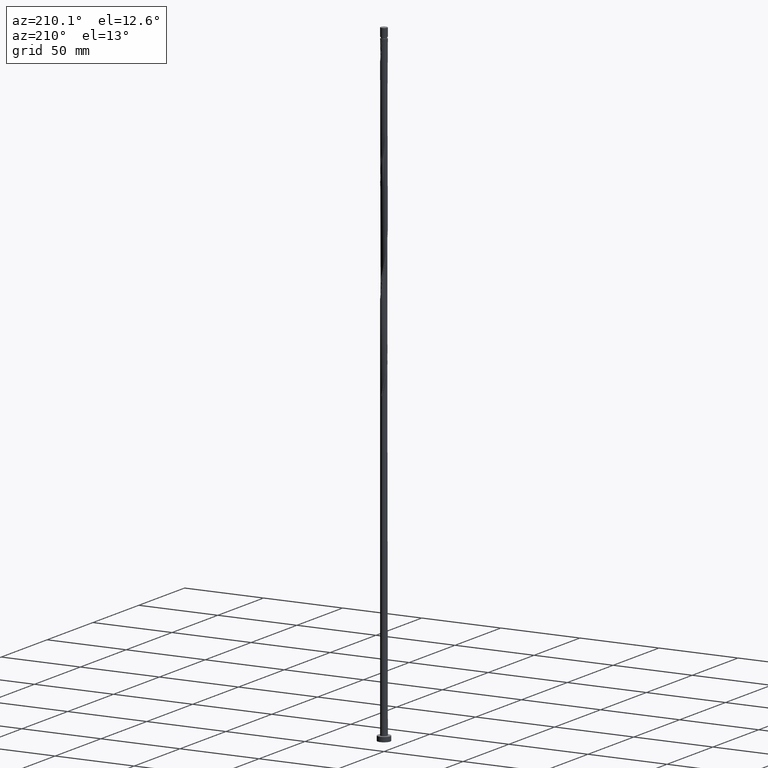
[diagram: clean part render]
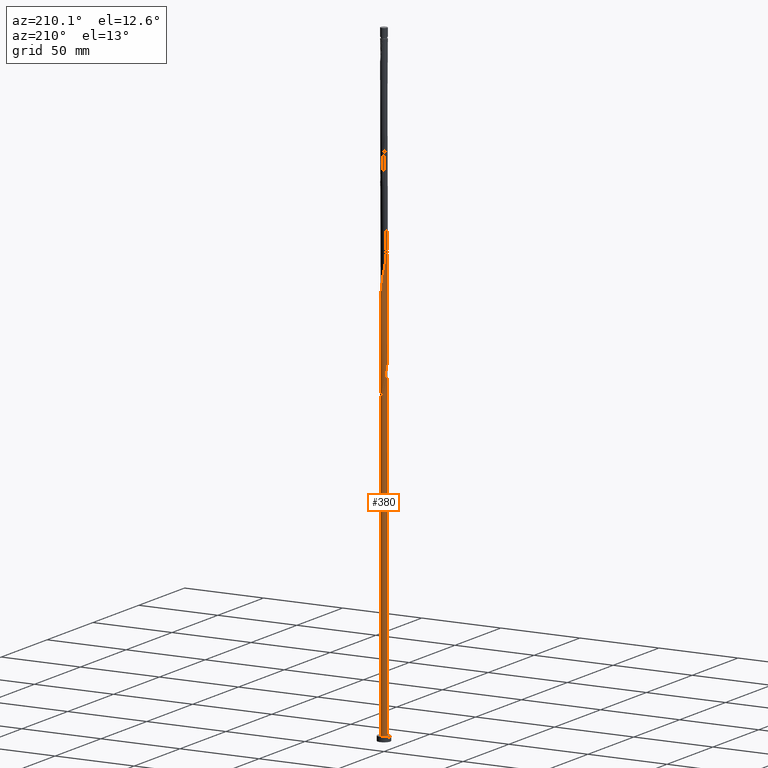
[diagram: same view with one face highlighted and labeled with its STEP entity id]
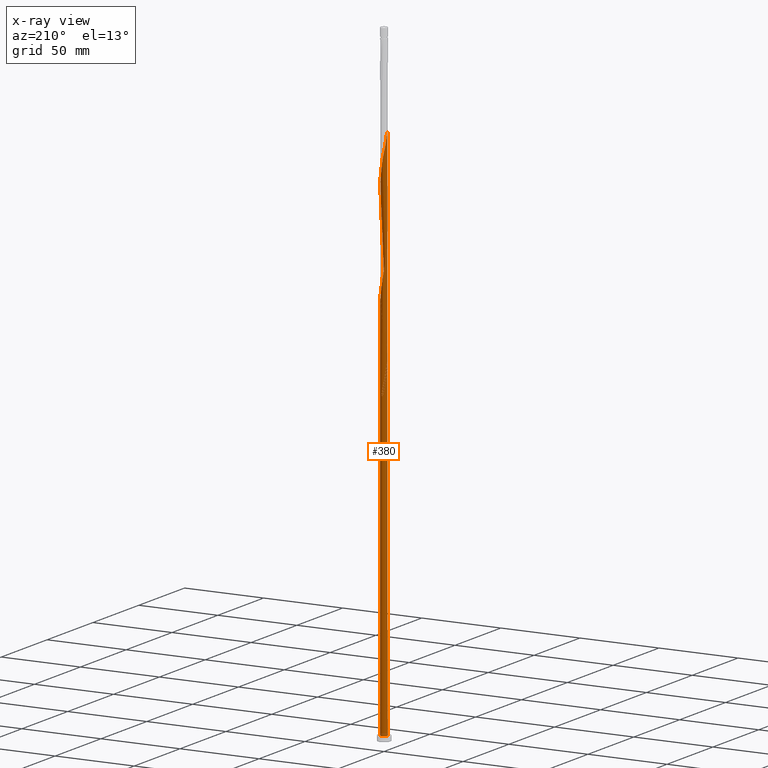
[diagram: x-ray of the same camera — body ghosted, the highlighted face saturated]
A machine part, auxiliary view. The second image highlights one B-rep face of the part: STEP entity #380.
The next image is the same camera in x-ray: the body ghosted, the highlighted face saturated — about 0% of this face is hidden behind the body in this view.
In plain terms, the highlighted cylindrical surface (bore or boss wall) has radius 2.1 mm, axis along (-0, -0, -1).
Its self-contained STEP definition (entity closure, byte-faithful):
#2 = ORIENTED_EDGE ( 'NONE', *, *, #1430, .T. ) ;
#6 = CARTESIAN_POINT ( 'NONE',  ( 1.427142655681894468, 1.556271400022309015, 317.2296152632139865 ) ) ;
#9 = ORIENTED_EDGE ( 'NONE', *, *, #1568, .T. ) ;
#16 = CARTESIAN_POINT ( 'NONE',  ( -1.427142655681894468, -1.556271400022309681, 217.2296152632138728 ) ) ;
#27 = CARTESIAN_POINT ( 'NONE',  ( -1.828137739088110170, -1.033398474414314316, 213.8962819298806721 ) ) ;
#28 = CARTESIAN_POINT ( 'NONE',  ( -2.100000000000003642, 1.121131156549833384E-16, 341.7708386863591841 ) ) ;
#32 = EDGE_LOOP ( 'NONE', ( #684, #577, #1633, #2, #222, #557, #310, #9, #1289 ) ) ;
#39 = EDGE_CURVE ( 'NONE', #453, #573, #1280, .T. ) ;
#87 = CARTESIAN_POINT ( 'NONE',  ( -0.2398292843463731006, -2.097903416405072274, 223.8962819298805584 ) ) ;
#88 = CARTESIAN_POINT ( 'NONE',  ( 0.2398292843463734059, 2.097903416405072274, 257.2296152632139865 ) ) ;
#96 = CARTESIAN_POINT ( 'NONE',  ( 1.921113390118098563, -0.8763790119024508218, 303.8962819298806153 ) ) ;
#105 = CARTESIAN_POINT ( 'NONE',  ( -0.4178947235847844111, 2.058000000000003382, 260.5629485965472441 ) ) ;
#115 = CARTESIAN_POINT ( 'NONE',  ( -2.086410881982748489, 0.2385154744329714138, 273.8962819298806153 ) ) ;
#123 = CARTESIAN_POINT ( 'NONE',  ( 1.398568953795477077, -1.581999276761400175, 299.4518374854361582 ) ) ;
#129 = CARTESIAN_POINT ( 'NONE',  ( 0.4178947235847845776, -2.058000000000003382, 227.2296152632139581 ) ) ;
#133 = CARTESIAN_POINT ( 'NONE',  ( 2.111479868522056158, -0.01922485423218994044, 308.3407263743250724 ) ) ;
#142 = CARTESIAN_POINT ( 'NONE',  ( -0.4178947235847844111, 2.058000000000003382, 327.2296152632140434 ) ) ;
#155 = EDGE_CURVE ( 'NONE', #1770, #817, #1543, .T. ) ;
#161 = CARTESIAN_POINT ( 'NONE',  ( -1.218829837953688378, 1.710103454798511002, 331.6740597076584436 ) ) ;
#174 = CYLINDRICAL_SURFACE ( 'NONE', #1793, 2.100000000000000089 ) ;
#181 = CARTESIAN_POINT ( 'NONE',  ( 1.547745982457623626, -1.419324618889668876, 233.8962819298805869 ) ) ;
#183 = CARTESIAN_POINT ( 'NONE',  ( -2.061341895443441707, 0.4578060946337541015, 206.1185041521028154 ) ) ;
#186 = CARTESIAN_POINT ( 'NONE',  ( -1.072389146410156924, -1.818982778603432937, 219.4518374854360729 ) ) ;
#190 = CARTESIAN_POINT ( 'NONE',  ( -0.01911953846917616856, -2.099912960874507739, 225.0073930409917011 ) ) ;
#196 = CARTESIAN_POINT ( 'NONE',  ( -1.218829837953688378, 1.710103454798511002, 198.3407263743250439 ) ) ;
#205 = CARTESIAN_POINT ( 'NONE',  ( -0.6341992397615473509, 2.014077494656063561, 195.0073930409916443 ) ) ;
#207 = LINE ( 'NONE', #1370, #1023 ) ;
#222 = ORIENTED_EDGE ( 'NONE', *, *, #848, .T. ) ;
#223 = CARTESIAN_POINT ( 'NONE',  ( -2.100000000000000089, 0.000000000000000000, 400.0000000000000000 ) ) ;
#235 = CARTESIAN_POINT ( 'NONE',  ( -0.4552981849463083597, -2.050049648858440321, 222.7851708187695294 ) ) ;
#236 = CARTESIAN_POINT ( 'NONE',  ( 2.061341895443441263, -0.4578060946337553783, 239.4518374854361298 ) ) ;
#245 = CARTESIAN_POINT ( 'NONE',  ( 0.2015902074080216100, -2.101922505343943204, 292.7851708187694726 ) ) ;
#253 = CARTESIAN_POINT ( 'NONE',  ( 1.249765901046026251, 1.687627089312870865, 251.6740597076583299 ) ) ;
#262 = CARTESIAN_POINT ( 'NONE',  ( 1.072389146410158034, 1.818982778603432271, 252.7851708187695010 ) ) ;
#272 = CARTESIAN_POINT ( 'NONE',  ( 0.4178947235847845776, -2.058000000000003382, 293.8962819298807290 ) ) ;
#276 = CARTESIAN_POINT ( 'NONE',  ( -2.069336039341719946, -0.4201966045504080260, 210.5629485965472725 ) ) ;
#281 = CARTESIAN_POINT ( 'NONE',  ( -2.100000000000003197, 0.1196448486375082665, 341.1652473769744347 ) ) ;
#290 = CARTESIAN_POINT ( 'NONE',  ( 2.086410881982748489, -0.2385154744329716359, 307.2296152632139865 ) ) ;
#298 = CARTESIAN_POINT ( 'NONE',  ( 2.069336039341719946, 0.4201966045504078595, 310.5629485965473009 ) ) ;
#310 = ORIENTED_EDGE ( 'NONE', *, *, #1308, .F. ) ;
#332 = VERTEX_POINT ( 'NONE', #1618 ) ;
#355 = AXIS2_PLACEMENT_3D ( 'NONE', #529, #551, #410 ) ;
#373 = LINE ( 'NONE', #223, #572 ) ;
#380 = ADVANCED_FACE ( 'NONE', ( #1338 ), #174, .T. ) ;
#385 = CARTESIAN_POINT ( 'NONE',  ( -0.01911953846917616856, -2.099912960874507739, 291.6740597076583867 ) ) ;
#395 = CARTESIAN_POINT ( 'NONE',  ( -0.8366449809367235702, 1.926142563745842695, 262.7851708187694726 ) ) ;
#399 = CARTESIAN_POINT ( 'NONE',  ( 0.000000000000000000, 0.000000000000000000, 193.8962819298805869 ) ) ;
#404 = CARTESIAN_POINT ( 'NONE',  ( 0.6707670855462437576, 2.002195881311807923, 255.0073930409916727 ) ) ;
#410 = DIRECTION ( 'NONE',  ( 1.000000000000000000, 0.000000000000000000, 0.000000000000000000 ) ) ;
#412 = CARTESIAN_POINT ( 'NONE',  ( -1.719523182710076314, -1.225543493441492604, 281.6740597076584436 ) ) ;
#422 = CARTESIAN_POINT ( 'NONE',  ( 0.01911953846917643224, 2.099912960874507739, 258.3407263743250724 ) ) ;
#434 = CARTESIAN_POINT ( 'NONE',  ( -2.003044167403932097, -0.6307250299687718886, 211.6740597076584152 ) ) ;
#439 = CARTESIAN_POINT ( 'NONE',  ( 1.573332919195986168, 1.390907446731900032, 316.1185041521027870 ) ) ;
#451 = CARTESIAN_POINT ( 'NONE',  ( 0.2015902074080222206, 2.101922505343939207, 195.0073930409915874 ) ) ;
#453 = VERTEX_POINT ( 'NONE', #1068 ) ;
#487 = CARTESIAN_POINT ( 'NONE',  ( 0.000000000000000000, 0.000000000000000000, 3.000000000000000000 ) ) ;
#496 = EDGE_CURVE ( 'NONE', #817, #453, #207, .T. ) ;
#498 = CARTESIAN_POINT ( 'NONE',  ( -2.003044167403927656, 0.6307250299687716666, 209.4518374854360729 ) ) ;
#505 = CARTESIAN_POINT ( 'NONE',  ( -1.921113390118099007, 0.8763790119024505998, 203.8962819298806153 ) ) ;
#507 = CARTESIAN_POINT ( 'NONE',  ( -1.249765901046022698, 1.687627089312868423, 202.7851708187694726 ) ) ;
#518 = CARTESIAN_POINT ( 'NONE',  ( -2.100000000000000533, 0.1004723985021784005, 212.1798433145047511 ) ) ;
#529 = CARTESIAN_POINT ( 'NONE',  ( 0.000000000000000000, 0.000000000000000000, 3.000000000000000000 ) ) ;
#531 = CARTESIAN_POINT ( 'NONE',  ( -1.398568953795477077, 1.581999276761399509, 266.1185041521027870 ) ) ;
#538 = CARTESIAN_POINT ( 'NONE',  ( -0.6707670855462435355, -2.002195881311807923, 288.3407263743249587 ) ) ;
#545 = CARTESIAN_POINT ( 'NONE',  ( 1.991227642780769580, -0.6670925532681031278, 238.3407263743250724 ) ) ;
#551 = DIRECTION ( 'NONE',  ( 0.000000000000000000, 0.000000000000000000, 1.000000000000000000 ) ) ;
#553 = CARTESIAN_POINT ( 'NONE',  ( -1.573332919195985058, -1.390907446731900921, 282.7851708187694157 ) ) ;
#557 = ORIENTED_EDGE ( 'NONE', *, *, #1677, .F. ) ;
#563 = CARTESIAN_POINT ( 'NONE',  ( 2.069336039341719946, 0.4201966045504078595, 243.8962819298805584 ) ) ;
#566 =( BOUNDED_CURVE ( )  B_SPLINE_CURVE ( 2, ( #1528, #205, #1208, #649, #196, #896, #1227, #1493, #1640, #505, #1083, #183, #772, #752, #1671 ),
 .UNSPECIFIED., .F., .T. ) 
 B_SPLINE_CURVE_WITH_KNOTS ( ( 3, 2, 2, 2, 2, 2, 2, 3 ),
 ( 0.000000000000000000, 0.008333333333333303727, 0.01666666666666671848, 0.02500000000000002220, 0.03333333333333332593, 0.04166666666666662966, 0.05000000000000004441, 0.05452860127731144063 ),
 .UNSPECIFIED. ) 
 CURVE ( )  GEOMETRIC_REPRESENTATION_ITEM ( )  RATIONAL_B_SPLINE_CURVE ( ( 0.9090909090909848889, 0.9041108139712329406, 0.9090909090909848889, 0.9041108139712329406, 0.9090909090909848889, 0.9041108139712329406, 0.9090909090909848889, 0.9041108139712329406, 0.9090909090909848889, 0.9041108139712329406, 0.9090909090909848889, 0.9041108139712329406, 0.9090909090909848889, 0.9063845652765318839, 0.9066196499552731103 ) ) 
 REPRESENTATION_ITEM ( '' )  );
#572 = VECTOR ( 'NONE', #1562, 1000.000000000000000 ) ;
#573 = VERTEX_POINT ( 'NONE', #794 ) ;
#577 = ORIENTED_EDGE ( 'NONE', *, *, #155, .F. ) ;
#579 = CARTESIAN_POINT ( 'NONE',  ( -1.072389146410154037, 1.818982778603429606, 201.6740597076583583 ) ) ;
#592 = CARTESIAN_POINT ( 'NONE',  ( 1.936752295466143359, 0.8412534553871343634, 312.7851708187694726 ) ) ;
#597 = VERTEX_POINT ( 'NONE', #1827 ) ;
#603 = CARTESIAN_POINT ( 'NONE',  ( -0.6341992397615473509, 2.014077494656063561, 328.3407263743250155 ) ) ;
#612 = CARTESIAN_POINT ( 'NONE',  ( -1.249765901046026251, -1.687627089312871087, 218.3407263743250155 ) ) ;
#613 = DIRECTION ( 'NONE',  ( -0.000000000000000000, -0.000000000000000000, -1.000000000000000000 ) ) ;
#632 = CARTESIAN_POINT ( 'NONE',  ( -1.573332919195981949, 1.390907446731899144, 205.0073930409917295 ) ) ;
#633 = CARTESIAN_POINT ( 'NONE',  ( -1.573332919195985058, -1.390907446731900921, 216.1185041521027870 ) ) ;
#649 = CARTESIAN_POINT ( 'NONE',  ( -1.039090722111899900, 1.838207632835621386, 197.2296152632139581 ) ) ;
#664 = AXIS2_PLACEMENT_3D ( 'NONE', #487, #1066, #1394 ) ;
#670 = CARTESIAN_POINT ( 'NONE',  ( -1.039090722111899900, 1.838207632835621386, 263.8962819298805584 ) ) ;
#677 = CARTESIAN_POINT ( 'NONE',  ( -1.991227642780769580, 0.6670925532681023506, 271.6740597076584436 ) ) ;
#682 = CARTESIAN_POINT ( 'NONE',  ( -2.100000000000003642, 1.121131156549833384E-16, 341.7708386863591841 ) ) ;
#684 = ORIENTED_EDGE ( 'NONE', *, *, #496, .F. ) ;
#685 = CARTESIAN_POINT ( 'NONE',  ( -0.8715781159781998966, -1.910589329957620874, 287.2296152632138728 ) ) ;
#693 = CARTESIAN_POINT ( 'NONE',  ( -2.111479868522055714, 0.01922485423218924308, 275.0073930409917011 ) ) ;
#700 = CARTESIAN_POINT ( 'NONE',  ( 1.547745982457623626, -1.419324618889668876, 300.5629485965473009 ) ) ;
#710 = CARTESIAN_POINT ( 'NONE',  ( 1.249765901046026251, 1.687627089312870865, 318.3407263743250155 ) ) ;
#718 = CARTESIAN_POINT ( 'NONE',  ( 0.8715781159782001186, 1.910589329957620874, 320.5629485965471872 ) ) ;
#726 = CARTESIAN_POINT ( 'NONE',  ( -0.2015902074080204720, 2.101922505343943648, 326.1185041521027870 ) ) ;
#745 = CARTESIAN_POINT ( 'NONE',  ( -0.8366449809367235702, 1.926142563745842695, 329.4518374854362150 ) ) ;
#752 = CARTESIAN_POINT ( 'NONE',  ( -2.100000000000003642, 0.1196448486375075587, 207.8319140436412056 ) ) ;
#772 = CARTESIAN_POINT ( 'NONE',  ( -2.086410881982748489, 0.2385154744329714138, 207.2296152632139297 ) ) ;
#794 = CARTESIAN_POINT ( 'NONE',  ( 0.4178947235847848551, 2.057999999999999829, 193.8962819298805584 ) ) ;
#804 = AXIS2_PLACEMENT_3D ( 'NONE', #399, #1092, #818 ) ;
#805 = CARTESIAN_POINT ( 'NONE',  ( 1.828137739088110170, 1.033398474414314316, 247.2296152632139297 ) ) ;
#814 = CARTESIAN_POINT ( 'NONE',  ( -0.2398292843463731006, -2.097903416405072274, 290.5629485965473577 ) ) ;
#817 = VERTEX_POINT ( 'NONE', #682 ) ;
#818 = DIRECTION ( 'NONE',  ( -1.000000000000000000, 0.000000000000000000, 0.000000000000000000 ) ) ;
#822 = CARTESIAN_POINT ( 'NONE',  ( -1.921113390118099007, 0.8763790119024505998, 270.5629485965472441 ) ) ;
#832 = CARTESIAN_POINT ( 'NONE',  ( -1.809018200618934591, 1.066514486460193645, 269.4518374854361582 ) ) ;
#842 = CARTESIAN_POINT ( 'NONE',  ( 0.6341992397615465737, -2.014077494656064005, 295.0073930409915874 ) ) ;
#848 = EDGE_CURVE ( 'NONE', #1107, #597, #1512, .T. ) ;
#859 = CARTESIAN_POINT ( 'NONE',  ( 2.003044167403932097, 0.6307250299687710005, 311.6740597076583867 ) ) ;
#867 = CARTESIAN_POINT ( 'NONE',  ( 0.6341992397615465737, -2.014077494656064005, 228.3407263743250439 ) ) ;
#882 = CARTESIAN_POINT ( 'NONE',  ( 0.4178947235847848551, 2.057999999999999829, 193.8962819298805584 ) ) ;
#896 = CARTESIAN_POINT ( 'NONE',  ( -1.398568953795477077, 1.581999276761399509, 199.4518374854361014 ) ) ;
#931 = CARTESIAN_POINT ( 'NONE',  ( -1.427142655681891137, 1.556271400022306794, 203.8962819298805869 ) ) ;
#943 = DIRECTION ( 'NONE',  ( -0.000000000000000000, -0.000000000000000000, -1.000000000000000000 ) ) ;
#960 = CARTESIAN_POINT ( 'NONE',  ( -1.547745982457623848, 1.419324618889668654, 267.2296152632139297 ) ) ;
#970 = CARTESIAN_POINT ( 'NONE',  ( 1.696923011119769509, -1.256649961017937356, 235.0073930409917580 ) ) ;
#979 = CARTESIAN_POINT ( 'NONE',  ( 0.4552981849463094699, 2.050049648858440321, 256.1185041521028438 ) ) ;
#982 = CARTESIAN_POINT ( 'NONE',  ( -0.4552981849463065278, 2.050049648858436768, 198.3407263743250155 ) ) ;
#988 = CARTESIAN_POINT ( 'NONE',  ( -0.6341992397615473509, 2.014077494656063561, 261.6740597076583867 ) ) ;
#993 = CARTESIAN_POINT ( 'NONE',  ( -2.100000000000003642, -0.1004723985021752641, 208.9460538785897938 ) ) ;
#998 = CARTESIAN_POINT ( 'NONE',  ( 2.100000000000000089, 0.000000000000000000, 3.000000000000000000 ) ) ;
#1009 = CARTESIAN_POINT ( 'NONE',  ( 0.000000000000000000, 0.000000000000000000, 400.0000000000000000 ) ) ;
#1012 = CARTESIAN_POINT ( 'NONE',  ( -0.6707670855462412041, 2.002195881311804371, 199.4518374854360729 ) ) ;
#1016 = CARTESIAN_POINT ( 'NONE',  ( 0.4552981849463094699, 2.050049648858440321, 322.7851708187695294 ) ) ;
#1023 = VECTOR ( 'NONE', #943, 1000.000000000000000 ) ;
#1066 = DIRECTION ( 'NONE',  ( 0.000000000000000000, 0.000000000000000000, 1.000000000000000000 ) ) ;
#1068 = CARTESIAN_POINT ( 'NONE',  ( -2.100000000000000089, -4.484524626199370022E-16, 212.6883918400687890 ) ) ;
#1072 = CARTESIAN_POINT ( 'NONE',  ( -2.100000000000003642, 1.464944711225115813E-15, 208.4375053530257560 ) ) ;
#1076 = CARTESIAN_POINT ( 'NONE',  ( -1.719523182710072540, 1.225543493441491050, 206.1185041521028154 ) ) ;
#1083 = CARTESIAN_POINT ( 'NONE',  ( -1.991227642780769580, 0.6670925532681023506, 205.0073930409917864 ) ) ;
#1087 = CIRCLE ( 'NONE', #664, 2.100000000000000089 ) ;
#1092 = DIRECTION ( 'NONE',  ( 0.000000000000000000, -0.000000000000000000, -1.000000000000000000 ) ) ;
#1103 = CARTESIAN_POINT ( 'NONE',  ( -1.072389146410156924, -1.818982778603432937, 286.1185041521029007 ) ) ;
#1107 = VERTEX_POINT ( 'NONE', #998 ) ;
#1113 = CARTESIAN_POINT ( 'NONE',  ( 1.719523182710076981, 1.225543493441492160, 248.3407263743250439 ) ) ;
#1118 = CARTESIAN_POINT ( 'NONE',  ( 1.039090722111899678, -1.838207632835621830, 230.5629485965472725 ) ) ;
#1122 = CARTESIAN_POINT ( 'NONE',  ( 1.936752295466143359, 0.8412534553871343634, 246.1185041521028154 ) ) ;
#1132 = CARTESIAN_POINT ( 'NONE',  ( -2.090407953931888052, -0.2004858751591091781, 276.1185041521029007 ) ) ;
#1140 = CARTESIAN_POINT ( 'NONE',  ( 1.218829837953687933, -1.710103454798511446, 298.3407263743250155 ) ) ;
#1151 = CARTESIAN_POINT ( 'NONE',  ( -1.936752295466143359, -0.8412534553871354737, 212.7851708187695294 ) ) ;
#1167 = CARTESIAN_POINT ( 'NONE',  ( -1.696923011119769953, 1.256649961017936912, 335.0073930409917011 ) ) ;
#1171 = CARTESIAN_POINT ( 'NONE',  ( -0.01911953846917485364, 2.099912960874503298, 196.1185041521028154 ) ) ;
#1178 = CARTESIAN_POINT ( 'NONE',  ( -1.547745982457623848, 1.419324618889668654, 333.8962819298806721 ) ) ;
#1188 = DIRECTION ( 'NONE',  ( -1.000000000000000000, 0.000000000000000000, 0.000000000000000000 ) ) ;
#1201 = CARTESIAN_POINT ( 'NONE',  ( 0.2015902074080216100, -2.101922505343943204, 226.1185041521027586 ) ) ;
#1208 = CARTESIAN_POINT ( 'NONE',  ( -0.8366449809367235702, 1.926142563745842695, 196.1185041521028438 ) ) ;
#1227 = CARTESIAN_POINT ( 'NONE',  ( -1.547745982457623848, 1.419324618889668654, 200.5629485965473009 ) ) ;
#1247 = CARTESIAN_POINT ( 'NONE',  ( -1.936752295466139362, 0.8412534553871346965, 208.3407263743249871 ) ) ;
#1250 = CARTESIAN_POINT ( 'NONE',  ( -2.069336039341719946, -0.4201966045504080260, 277.2296152632138728 ) ) ;
#1259 = CARTESIAN_POINT ( 'NONE',  ( 2.086410881982748489, -0.2385154744329716359, 240.5629485965473009 ) ) ;
#1266 = CARTESIAN_POINT ( 'NONE',  ( 0.8366449809367229040, -1.926142563745842695, 296.1185041521027870 ) ) ;
#1275 = CARTESIAN_POINT ( 'NONE',  ( 1.809018200618934591, -1.066514486460194533, 236.1185041521028722 ) ) ;
#1279 = CARTESIAN_POINT ( 'NONE',  ( -2.100000000000003642, 1.464944711225115813E-15, 208.4375053530257276 ) ) ;
#1280 =( BOUNDED_CURVE ( )  B_SPLINE_CURVE ( 2, ( #1538, #518, #1369, #1397, #498, #1247, #1816, #1076, #632, #931, #507, #579, #1428, #1012, #982, #1635, #1171, #451, #882 ),
 .UNSPECIFIED., .F., .T. ) 
 B_SPLINE_CURVE_WITH_KNOTS ( ( 3, 2, 2, 2, 2, 2, 2, 2, 2, 3 ),
 ( 0.9295286012773115170, 0.9333333333333333481, 0.9416666666666666519, 0.9499999999999999556, 0.9583333333333333703, 0.9666666666666666741, 0.9749999999999999778, 0.9833333333333332815, 0.9916666666666666963, 1.000000000000000000 ),
 .UNSPECIFIED. ) 
 CURVE ( )  GEOMETRIC_REPRESENTATION_ITEM ( )  RATIONAL_B_SPLINE_CURVE ( ( 0.9066196499552656718, 0.9068171577856785071, 0.9090909090909774504, 0.9041108139712256131, 0.9090909090909774504, 0.9041108139712256131, 0.9090909090909774504, 0.9041108139712256131, 0.9090909090909774504, 0.9041108139712256131, 0.9090909090909774504, 0.9041108139712256131, 0.9090909090909774504, 0.9041108139712256131, 0.9090909090909774504, 0.9041108139712256131, 0.9090909090909774504, 0.9041108139712256131, 0.9090909090909774504 ) ) 
 REPRESENTATION_ITEM ( '' )  );
#1286 = CARTESIAN_POINT ( 'NONE',  ( 2.090407953931888496, 0.2004858751591080401, 242.7851708187694726 ) ) ;
#1289 = ORIENTED_EDGE ( 'NONE', *, *, #39, .F. ) ;
#1305 = CARTESIAN_POINT ( 'NONE',  ( 0.2398292843463734059, 2.097903416405072274, 323.8962819298805584 ) ) ;
#1308 = EDGE_CURVE ( 'NONE', #332, #1770, #566, .T. ) ;
#1325 = CARTESIAN_POINT ( 'NONE',  ( -1.719523182710076314, -1.225543493441492604, 215.0073930409917580 ) ) ;
#1326 = CARTESIAN_POINT ( 'NONE',  ( 1.828137739088110170, 1.033398474414314316, 313.8962819298806153 ) ) ;
#1338 = FACE_OUTER_BOUND ( 'NONE', #32, .T. ) ;
#1369 = CARTESIAN_POINT ( 'NONE',  ( -2.090407953931884943, 0.2004858751591098720, 211.6740597076584152 ) ) ;
#1370 = CARTESIAN_POINT ( 'NONE',  ( -2.100000000000000089, 0.000000000000000000, 400.0000000000000000 ) ) ;
#1394 = DIRECTION ( 'NONE',  ( 1.000000000000000000, 0.000000000000000000, 0.000000000000000000 ) ) ;
#1397 = CARTESIAN_POINT ( 'NONE',  ( -2.069336039341715949, 0.4201966045504077485, 210.5629485965472441 ) ) ;
#1401 = CARTESIAN_POINT ( 'NONE',  ( -0.6707670855462435355, -2.002195881311807923, 221.6740597076584152 ) ) ;
#1403 = CARTESIAN_POINT ( 'NONE',  ( 1.573332919195986168, 1.390907446731900032, 249.4518374854361582 ) ) ;
#1410 = CARTESIAN_POINT ( 'NONE',  ( 1.809018200618934591, -1.066514486460194533, 302.7851708187694157 ) ) ;
#1417 = CARTESIAN_POINT ( 'NONE',  ( -1.696923011119769953, 1.256649961017936912, 268.3407263743250724 ) ) ;
#1425 = CARTESIAN_POINT ( 'NONE',  ( -2.061341895443441707, 0.4578060946337541015, 272.7851708187694726 ) ) ;
#1428 = CARTESIAN_POINT ( 'NONE',  ( -0.8715781159781976761, 1.910589329957617544, 200.5629485965472725 ) ) ;
#1430 = EDGE_CURVE ( 'NONE', #597, #1107, #1087, .T. ) ;
#1431 = CARTESIAN_POINT ( 'NONE',  ( 1.218829837953687933, -1.710103454798511446, 231.6740597076583867 ) ) ;
#1436 = CARTESIAN_POINT ( 'NONE',  ( 1.039090722111899678, -1.838207632835621830, 297.2296152632138160 ) ) ;
#1444 = CARTESIAN_POINT ( 'NONE',  ( 2.061341895443441263, -0.4578060946337553783, 306.1185041521028438 ) ) ;
#1458 = CIRCLE ( 'NONE', #804, 2.100000000000000089 ) ;
#1462 = CARTESIAN_POINT ( 'NONE',  ( 1.719523182710076981, 1.225543493441492160, 315.0073930409916443 ) ) ;
#1493 = CARTESIAN_POINT ( 'NONE',  ( -1.696923011119769953, 1.256649961017936912, 201.6740597076583299 ) ) ;
#1512 = CIRCLE ( 'NONE', #355, 2.100000000000000089 ) ;
#1528 = CARTESIAN_POINT ( 'NONE',  ( -0.4178947235847841890, 2.058000000000002938, 193.8962819298805584 ) ) ;
#1538 = CARTESIAN_POINT ( 'NONE',  ( -2.100000000000000089, -4.484524626199370022E-16, 212.6883918400687890 ) ) ;
#1541 = CARTESIAN_POINT ( 'NONE',  ( 1.921113390118098563, -0.8763790119024508218, 237.2296152632139297 ) ) ;
#1543 =( BOUNDED_CURVE ( )  B_SPLINE_CURVE ( 2, ( #1279, #993, #1889, #276, #434, #1151, #27, #1325, #633, #16, #612, #186, #1557, #1401, #235, #87, #190, #1201, #129, #867, #1849, #1118, #1431, #1716, #181, #970, #1275, #1541, #545, #236, #1259, #1711, #1286, #563, #1551, #1122, #805, #1113, #1403, #1558, #253, #262, #1872, #404, #979, #88, #422, #1566, #105, #988, #395, #670, #1854, #531, #960, #1417, #832, #822, #677, #1425, #115, #693, #1132, #1250, #1862, #1837, #1721, #412, #553, #1574, #1692, #1103, #685, #538, #1844, #814, #385, #245, #272, #842, #1266, #1436, #1140, #123, #700, #1731, #1410, #96, #1700, #1444, #290, #133, #1610, #298, #859, #592, #1326, #1462, #439, #6, #710, #1755, #718, #1748, #1016, #1305, #1767, #726, #142, #603, #745, #1601, #161, #1777, #1178, #1167, #1592, #1893, #1883, #1741, #1583, #281, #28 ),
 .UNSPECIFIED., .F., .T. ) 
 B_SPLINE_CURVE_WITH_KNOTS ( ( 3, 2, 2, 2, 2, 2, 2, 2, 2, 2, 2, 2, 2, 2, 2, 2, 2, 2, 2, 2, 2, 2, 2, 2, 2, 2, 2, 2, 2, 2, 2, 2, 2, 2, 2, 2, 2, 2, 2, 2, 2, 2, 2, 2, 2, 2, 2, 2, 2, 2, 2, 2, 2, 2, 2, 2, 2, 2, 2, 2, 2, 3 ),
 ( 0.05452860127731143369, 0.05833333333333334814, 0.06666666666666665186, 0.07499999999999995559, 0.08333333333333337034, 0.09166666666666667407, 0.09999999999999997780, 0.1083333333333332815, 0.1166666666666666963, 0.1250000000000000000, 0.1333333333333333037, 0.1416666666666667185, 0.1500000000000000222, 0.1583333333333333259, 0.1666666666666666297, 0.1750000000000000444, 0.1833333333333333481, 0.1916666666666666519, 0.1999999999999999556, 0.2083333333333333703, 0.2166666666666666741, 0.2249999999999999778, 0.2333333333333332815, 0.2416666666666666963, 0.2500000000000000000, 0.2583333333333333037, 0.2666666666666667185, 0.2750000000000000222, 0.2833333333333333259, 0.2916666666666666297, 0.3000000000000000444, 0.3083333333333333481, 0.3166666666666666519, 0.3249999999999999556, 0.3333333333333333703, 0.3416666666666666741, 0.3499999999999999778, 0.3583333333333332815, 0.3666666666666666963, 0.3750000000000000000, 0.3833333333333333037, 0.3916666666666667185, 0.4000000000000000222, 0.4083333333333333259, 0.4166666666666666297, 0.4250000000000000444, 0.4333333333333333481, 0.4416666666666666519, 0.4499999999999999556, 0.4583333333333333703, 0.4666666666666666741, 0.4749999999999999778, 0.4833333333333332815, 0.4916666666666666963, 0.5000000000000000000, 0.5083333333333333037, 0.5166666666666666075, 0.5250000000000000222, 0.5333333333333333259, 0.5416666666666667407, 0.5500000000000000444, 0.5545286012773114059 ),
 .UNSPECIFIED. ) 
 CURVE ( )  GEOMETRIC_REPRESENTATION_ITEM ( )  RATIONAL_B_SPLINE_CURVE ( ( 0.9066196499552731103, 0.9068171577856858345, 0.9090909090909848889, 0.9041108139712329406, 0.9090909090909848889, 0.9041108139712329406, 0.9090909090909848889, 0.9041108139712329406, 0.9090909090909848889, 0.9041108139712329406, 0.9090909090909848889, 0.9041108139712329406, 0.9090909090909848889, 0.9041108139712329406, 0.9090909090909848889, 0.9041108139712329406, 0.9090909090909848889, 0.9041108139712329406, 0.9090909090909848889, 0.9041108139712329406, 0.9090909090909848889, 0.9041108139712329406, 0.9090909090909848889, 0.9041108139712329406, 0.9090909090909848889, 0.9041108139712329406, 0.9090909090909848889, 0.9041108139712329406, 0.9090909090909848889, 0.9041108139712329406, 0.9090909090909848889, 0.9041108139712329406, 0.9090909090909848889, 0.9041108139712329406, 0.9090909090909848889, 0.9041108139712329406, 0.9090909090909848889, 0.9041108139712329406, 0.9090909090909848889, 0.9041108139712329406, 0.9090909090909848889, 0.9041108139712329406, 0.9090909090909848889, 0.9041108139712329406, 0.9090909090909848889, 0.9041108139712329406, 0.9090909090909848889, 0.9041108139712329406, 0.9090909090909848889, 0.9041108139712329406, 0.9090909090909848889, 0.9041108139712329406, 0.9090909090909848889, 0.9041108139712329406, 0.9090909090909848889, 0.9041108139712329406, 0.9090909090909848889, 0.9041108139712329406, 0.9090909090909848889, 0.9041108139712329406, 0.9090909090909848889, 0.9041108139712329406, 0.9090909090909848889, 0.9041108139712329406, 0.9090909090909848889, 0.9041108139712329406, 0.9090909090909848889, 0.9041108139712329406, 0.9090909090909848889, 0.9041108139712329406, 0.9090909090909848889, 0.9041108139712329406, 0.9090909090909848889, 0.9041108139712329406, 0.9090909090909848889, 0.9041108139712329406, 0.9090909090909848889, 0.9041108139712329406, 0.9090909090909848889, 0.9041108139712329406, 0.9090909090909848889, 0.9041108139712329406, 0.9090909090909848889, 0.9041108139712329406, 0.9090909090909848889, 0.9041108139712329406, 0.9090909090909848889, 0.9041108139712329406, 0.9090909090909848889, 0.9041108139712329406, 0.9090909090909848889, 0.9041108139712329406, 0.9090909090909848889, 0.9041108139712329406, 0.9090909090909848889, 0.9041108139712329406, 0.9090909090909848889, 0.9041108139712329406, 0.9090909090909848889, 0.9041108139712329406, 0.9090909090909848889, 0.9041108139712329406, 0.9090909090909848889, 0.9041108139712329406, 0.9090909090909848889, 0.9041108139712329406, 0.9090909090909848889, 0.9041108139712329406, 0.9090909090909848889, 0.9041108139712329406, 0.9090909090909848889, 0.9041108139712329406, 0.9090909090909848889, 0.9041108139712329406, 0.9090909090909848889, 0.9041108139712329406, 0.9090909090909848889, 0.9041108139712329406, 0.9090909090909848889, 0.9041108139712329406, 0.9090909090909848889, 0.9063845652765319949, 0.9066196499552731103 ) ) 
 REPRESENTATION_ITEM ( '' )  );
#1551 = CARTESIAN_POINT ( 'NONE',  ( 2.003044167403932097, 0.6307250299687710005, 245.0073930409917295 ) ) ;
#1557 = CARTESIAN_POINT ( 'NONE',  ( -0.8715781159781998966, -1.910589329957620874, 220.5629485965472725 ) ) ;
#1558 = CARTESIAN_POINT ( 'NONE',  ( 1.427142655681894468, 1.556271400022309015, 250.5629485965472156 ) ) ;
#1562 = DIRECTION ( 'NONE',  ( -0.000000000000000000, -0.000000000000000000, -1.000000000000000000 ) ) ;
#1566 = CARTESIAN_POINT ( 'NONE',  ( -0.2015902074080204720, 2.101922505343943648, 259.4518374854361014 ) ) ;
#1568 = EDGE_CURVE ( 'NONE', #332, #573, #1458, .T. ) ;
#1574 = CARTESIAN_POINT ( 'NONE',  ( -1.427142655681894468, -1.556271400022309681, 283.8962819298805584 ) ) ;
#1583 = CARTESIAN_POINT ( 'NONE',  ( -2.086410881982748489, 0.2385154744329714138, 340.5629485965471872 ) ) ;
#1592 = CARTESIAN_POINT ( 'NONE',  ( -1.809018200618934591, 1.066514486460193645, 336.1185041521028438 ) ) ;
#1601 = CARTESIAN_POINT ( 'NONE',  ( -1.039090722111899900, 1.838207632835621386, 330.5629485965473009 ) ) ;
#1610 = CARTESIAN_POINT ( 'NONE',  ( 2.090407953931888496, 0.2004858751591080401, 309.4518374854362150 ) ) ;
#1618 = CARTESIAN_POINT ( 'NONE',  ( -0.4178947235847841890, 2.058000000000002938, 193.8962819298805584 ) ) ;
#1633 = ORIENTED_EDGE ( 'NONE', *, *, #1677, .T. ) ;
#1635 = CARTESIAN_POINT ( 'NONE',  ( -0.2398292843463719626, 2.097903416405068278, 197.2296152632139297 ) ) ;
#1640 = CARTESIAN_POINT ( 'NONE',  ( -1.809018200618934591, 1.066514486460193645, 202.7851708187694726 ) ) ;
#1671 = CARTESIAN_POINT ( 'NONE',  ( -2.100000000000003642, 1.464944711225115813E-15, 208.4375053530257276 ) ) ;
#1677 = EDGE_CURVE ( 'NONE', #1770, #597, #373, .T. ) ;
#1692 = CARTESIAN_POINT ( 'NONE',  ( -1.249765901046026251, -1.687627089312871087, 285.0073930409917580 ) ) ;
#1700 = CARTESIAN_POINT ( 'NONE',  ( 1.991227642780769580, -0.6670925532681031278, 305.0073930409917011 ) ) ;
#1711 = CARTESIAN_POINT ( 'NONE',  ( 2.111479868522056158, -0.01922485423218994044, 241.6740597076583299 ) ) ;
#1716 = CARTESIAN_POINT ( 'NONE',  ( 1.398568953795477077, -1.581999276761400175, 232.7851708187694726 ) ) ;
#1721 = CARTESIAN_POINT ( 'NONE',  ( -1.828137739088110170, -1.033398474414314316, 280.5629485965473009 ) ) ;
#1731 = CARTESIAN_POINT ( 'NONE',  ( 1.696923011119769509, -1.256649961017937356, 301.6740597076583867 ) ) ;
#1741 = CARTESIAN_POINT ( 'NONE',  ( -2.061341895443441707, 0.4578060946337541015, 339.4518374854359877 ) ) ;
#1748 = CARTESIAN_POINT ( 'NONE',  ( 0.6707670855462437576, 2.002195881311807923, 321.6740597076584436 ) ) ;
#1755 = CARTESIAN_POINT ( 'NONE',  ( 1.072389146410158034, 1.818982778603432271, 319.4518374854361014 ) ) ;
#1767 = CARTESIAN_POINT ( 'NONE',  ( 0.01911953846917643224, 2.099912960874507739, 325.0073930409917011 ) ) ;
#1770 = VERTEX_POINT ( 'NONE', #1072 ) ;
#1777 = CARTESIAN_POINT ( 'NONE',  ( -1.398568953795477077, 1.581999276761399509, 332.7851708187695294 ) ) ;
#1793 = AXIS2_PLACEMENT_3D ( 'NONE', #1009, #613, #1188 ) ;
#1816 = CARTESIAN_POINT ( 'NONE',  ( -1.828137739088106173, 1.033398474414312762, 207.2296152632139012 ) ) ;
#1827 = CARTESIAN_POINT ( 'NONE',  ( -2.100000000000000089, 0.000000000000000000, 3.000000000000000000 ) ) ;
#1837 = CARTESIAN_POINT ( 'NONE',  ( -1.936752295466143359, -0.8412534553871354737, 279.4518374854360445 ) ) ;
#1844 = CARTESIAN_POINT ( 'NONE',  ( -0.4552981849463083597, -2.050049648858440321, 289.4518374854362150 ) ) ;
#1849 = CARTESIAN_POINT ( 'NONE',  ( 0.8366449809367229040, -1.926142563745842695, 229.4518374854361582 ) ) ;
#1854 = CARTESIAN_POINT ( 'NONE',  ( -1.218829837953688378, 1.710103454798511002, 265.0073930409917011 ) ) ;
#1862 = CARTESIAN_POINT ( 'NONE',  ( -2.003044167403932097, -0.6307250299687718886, 278.3407263743251292 ) ) ;
#1872 = CARTESIAN_POINT ( 'NONE',  ( 0.8715781159782001186, 1.910589329957620874, 253.8962819298806721 ) ) ;
#1883 = CARTESIAN_POINT ( 'NONE',  ( -1.991227642780769580, 0.6670925532681023506, 338.3407263743250724 ) ) ;
#1889 = CARTESIAN_POINT ( 'NONE',  ( -2.090407953931888052, -0.2004858751591091781, 209.4518374854361582 ) ) ;
#1893 = CARTESIAN_POINT ( 'NONE',  ( -1.921113390118099007, 0.8763790119024505998, 337.2296152632139297 ) ) ;